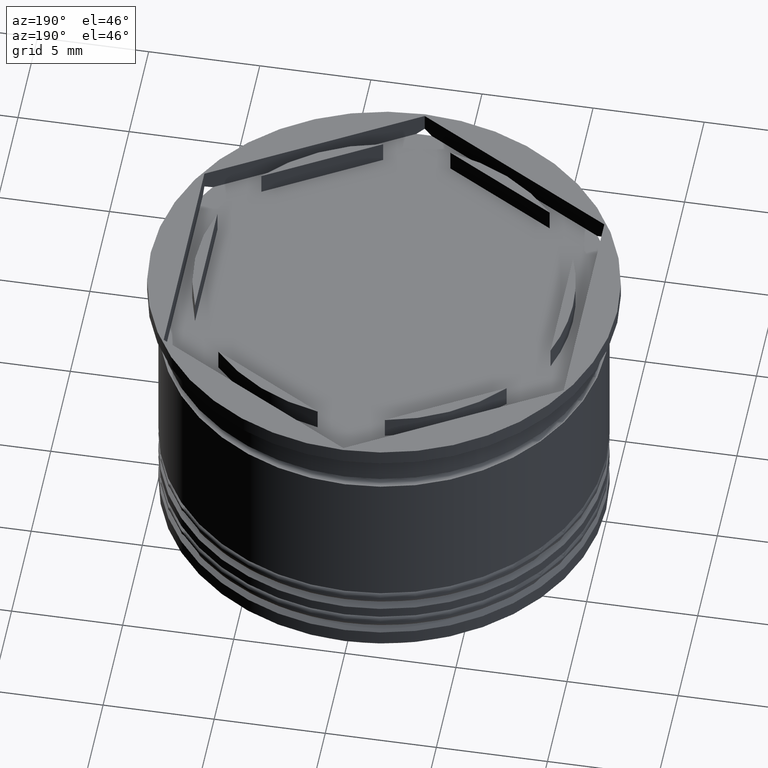
[diagram: clean part render]
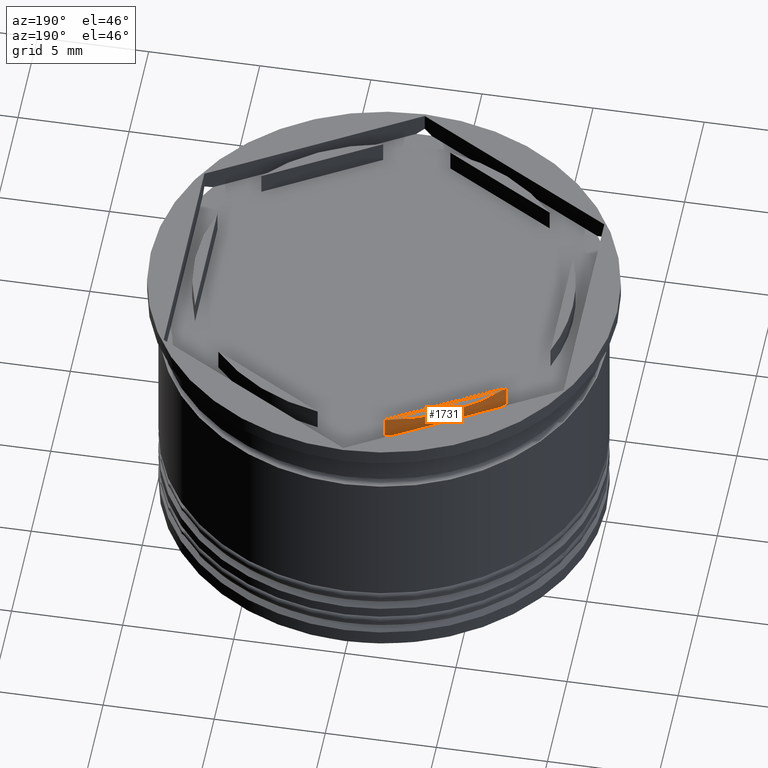
[diagram: same view with one face highlighted and labeled with its STEP entity id]
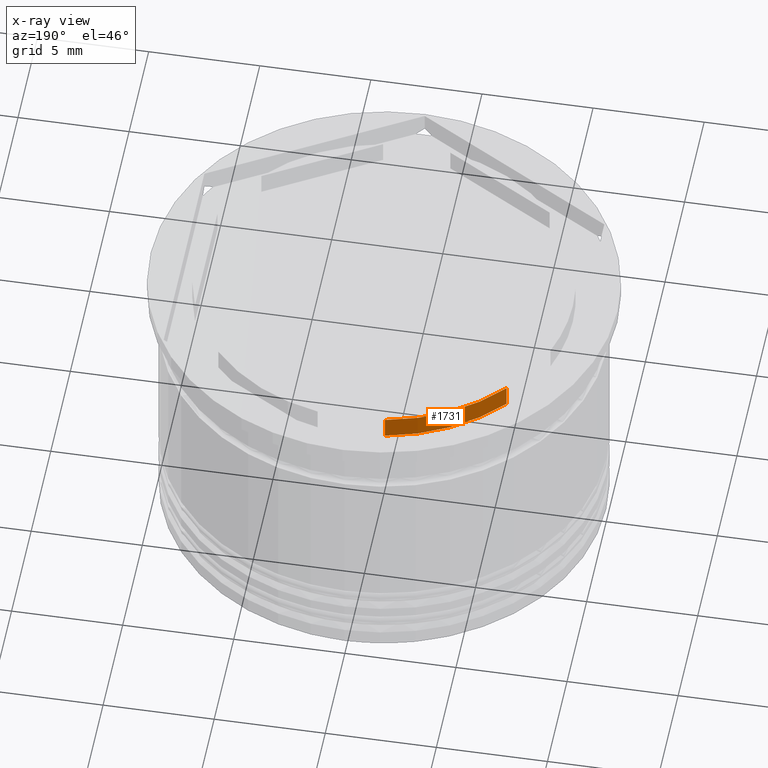
[diagram: x-ray of the same camera — body ghosted, the highlighted face saturated]
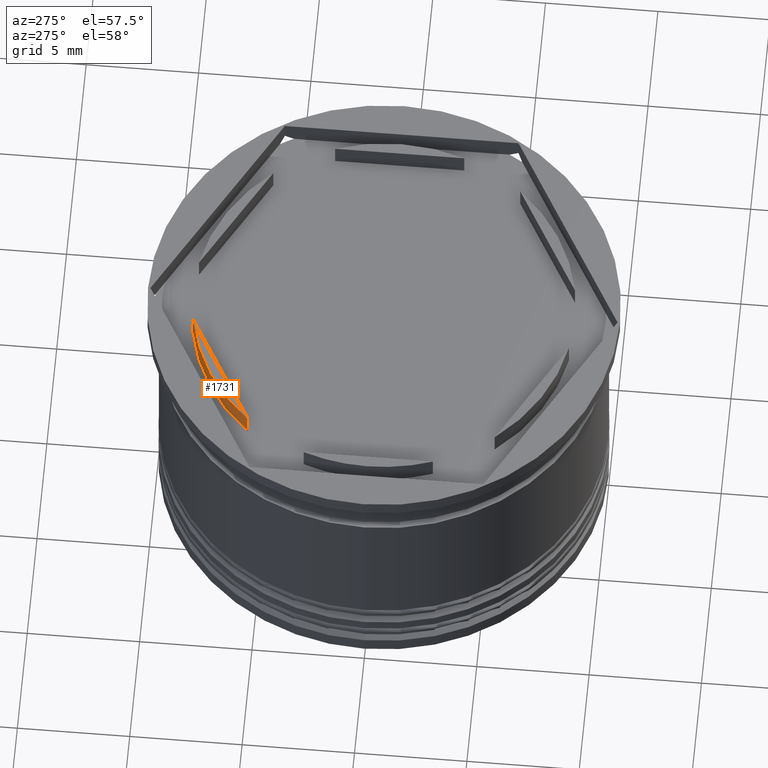
[diagram: same view with one face highlighted and labeled with its STEP entity id]
A machine part, auxiliary view. The second image highlights one B-rep face of the part: STEP entity #1731.
The next image is the same camera in x-ray: the body ghosted, the highlighted face saturated — about 0% of this face is hidden behind the body in this view.
A second angle (auxiliary view) of the same face is appended — the face is thin or edge-on in the first view.
In plain terms, the highlighted cylindrical surface (partial cylindrical patch) has radius 8.5 mm, axis along (-0, -0, -1).
Its self-contained STEP definition (entity closure, byte-faithful):
#29 = LINE ( 'NONE', #498, #1314 ) ;
#347 = DIRECTION ( 'NONE',  ( 1.000000000000000000, 0.000000000000000000, 0.000000000000000000 ) ) ;
#394 = ORIENTED_EDGE ( 'NONE', *, *, #1538, .T. ) ;
#454 = CYLINDRICAL_SURFACE ( 'NONE', #1700, 8.500000000000000000 ) ;
#491 = CARTESIAN_POINT ( 'NONE',  ( -6.487468592766552078, 5.492062568641001619, -1.000000000000000888 ) ) ;
#498 = CARTESIAN_POINT ( 'NONE',  ( -1.512531407233448366, 8.364343891910017703, 24.04163056034261459 ) ) ;
#515 = EDGE_CURVE ( 'NONE', #1178, #570, #954, .T. ) ;
#570 = VERTEX_POINT ( 'NONE', #1438 ) ;
#626 = CARTESIAN_POINT ( 'NONE',  ( 0.000000000000000000, 0.000000000000000000, 24.04163056034261459 ) ) ;
#665 = ORIENTED_EDGE ( 'NONE', *, *, #1127, .T. ) ;
#669 = VERTEX_POINT ( 'NONE', #1499 ) ;
#769 = CARTESIAN_POINT ( 'NONE',  ( -6.487468592766552078, 5.492062568641001619, 24.04163056034261459 ) ) ;
#822 = CARTESIAN_POINT ( 'NONE',  ( 0.000000000000000000, 0.000000000000000000, -1.000000000000000000 ) ) ;
#843 = DIRECTION ( 'NONE',  ( -0.000000000000000000, -0.000000000000000000, -1.000000000000000000 ) ) ;
#922 = CIRCLE ( 'NONE', #2154, 8.500000000000000000 ) ;
#924 = DIRECTION ( 'NONE',  ( -0.000000000000000000, -0.000000000000000000, -1.000000000000000000 ) ) ;
#954 = LINE ( 'NONE', #769, #1592 ) ;
#967 = FACE_OUTER_BOUND ( 'NONE', #1376, .T. ) ;
#994 = AXIS2_PLACEMENT_3D ( 'NONE', #1830, #1162, #347 ) ;
#1127 = EDGE_CURVE ( 'NONE', #669, #1178, #922, .T. ) ;
#1162 = DIRECTION ( 'NONE',  ( -0.000000000000000000, -0.000000000000000000, 1.000000000000000000 ) ) ;
#1169 = ORIENTED_EDGE ( 'NONE', *, *, #515, .T. ) ;
#1178 = VERTEX_POINT ( 'NONE', #491 ) ;
#1275 = DIRECTION ( 'NONE',  ( -1.000000000000000000, 0.000000000000000000, 0.000000000000000000 ) ) ;
#1314 = VECTOR ( 'NONE', #843, 1000.000000000000000 ) ;
#1376 = EDGE_LOOP ( 'NONE', ( #2151, #394, #665, #1169 ) ) ;
#1399 = VERTEX_POINT ( 'NONE', #1454 ) ;
#1438 = CARTESIAN_POINT ( 'NONE',  ( -6.487468592766551190, 5.492062568641001619, 0.000000000000000000 ) ) ;
#1454 = CARTESIAN_POINT ( 'NONE',  ( -1.512531407233448366, 8.364343891910017703, 0.000000000000000000 ) ) ;
#1492 = DIRECTION ( 'NONE',  ( 1.000000000000000000, 0.000000000000000000, 0.000000000000000000 ) ) ;
#1499 = CARTESIAN_POINT ( 'NONE',  ( -1.512531407233448366, 8.364343891910017703, -1.000000000000000888 ) ) ;
#1511 = EDGE_CURVE ( 'NONE', #1399, #570, #1626, .T. ) ;
#1538 = EDGE_CURVE ( 'NONE', #1399, #669, #29, .T. ) ;
#1592 = VECTOR ( 'NONE', #1629, 1000.000000000000000 ) ;
#1626 = CIRCLE ( 'NONE', #994, 8.500000000000000000 ) ;
#1629 = DIRECTION ( 'NONE',  ( 0.000000000000000000, 0.000000000000000000, 1.000000000000000000 ) ) ;
#1700 = AXIS2_PLACEMENT_3D ( 'NONE', #626, #924, #1275 ) ;
#1731 = ADVANCED_FACE ( 'NONE', ( #967 ), #454, .T. ) ;
#1830 = CARTESIAN_POINT ( 'NONE',  ( 0.000000000000000000, 0.000000000000000000, 0.000000000000000000 ) ) ;
#2035 = DIRECTION ( 'NONE',  ( 0.000000000000000000, 0.000000000000000000, 1.000000000000000000 ) ) ;
#2151 = ORIENTED_EDGE ( 'NONE', *, *, #1511, .F. ) ;
#2154 = AXIS2_PLACEMENT_3D ( 'NONE', #822, #2035, #1492 ) ;